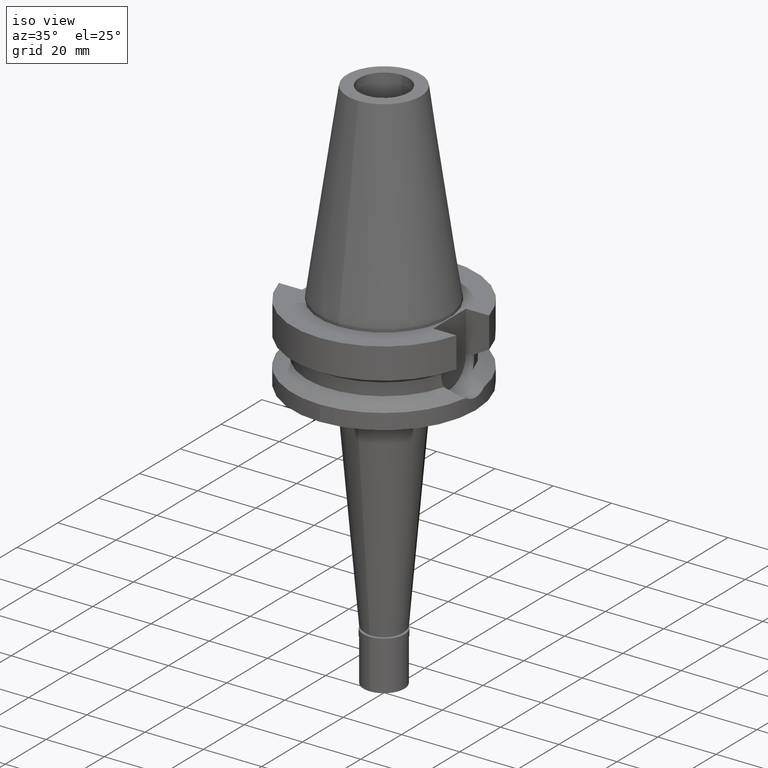
[diagram: clean part render]
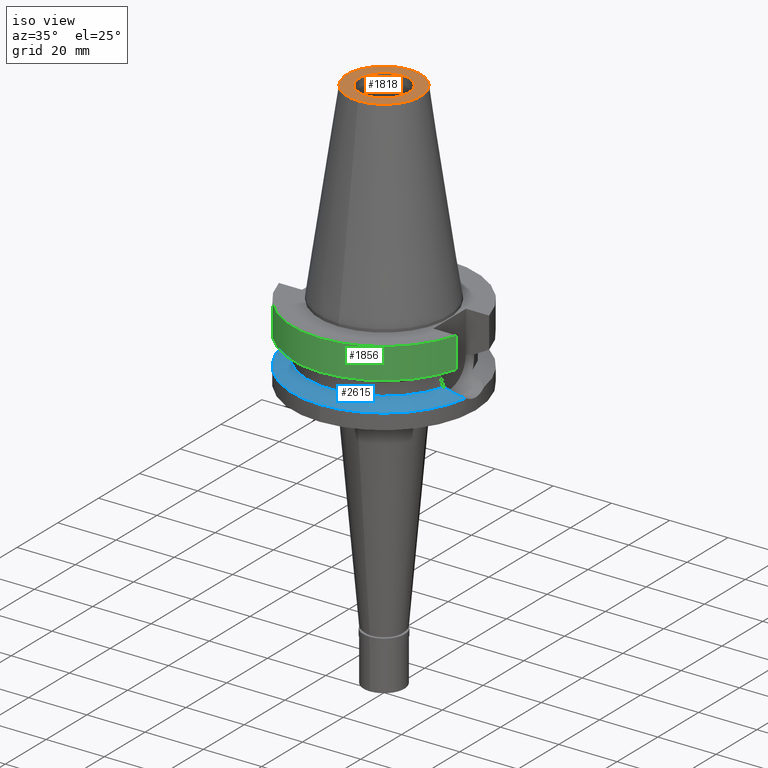
[diagram: same view with three faces highlighted in distinct colors, each labeled with its STEP entity id]
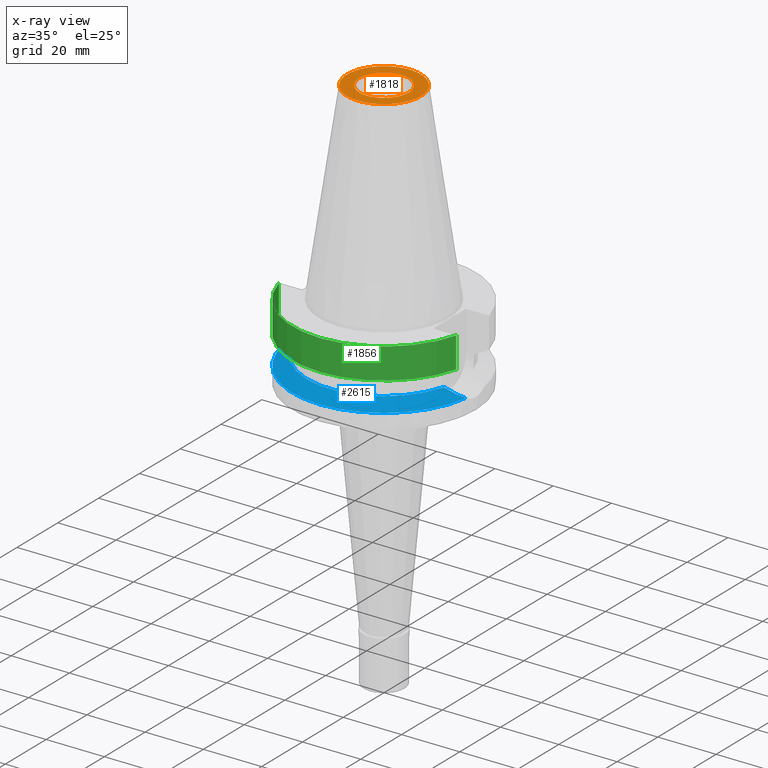
[diagram: x-ray of the same camera — body ghosted, the three highlighted faces saturated]
A machine part, iso view with three faces highlighted in distinct colors.
The next image is the same camera in x-ray (body ghosted, the three faces saturated) — at least one of them is partly hidden behind the body in this view.
Their STEP definitions:

[orange] entity #1818 — the highlighted planar face has unit normal (0, 0, -1).
#60 = ORIENTED_EDGE ( 'NONE', *, *, #2128, .F. ) ;
#69 = EDGE_LOOP ( 'NONE', ( #60, #2188 ) ) ;
#181 = AXIS2_PLACEMENT_3D ( 'NONE', #350, #2866, #412 ) ;
#193 = CARTESIAN_POINT ( 'NONE',  ( 0.0000000000000000000, 12.68766899429999917, 65.40000000000000568 ) ) ;
#198 = VERTEX_POINT ( 'NONE', #2687 ) ;
#265 = CARTESIAN_POINT ( 'NONE',  ( 0.0000000000000000000, -12.68766899429999917, 65.40000000000000568 ) ) ;
#320 = EDGE_CURVE ( 'NONE', #2205, #198, #1810, .T. ) ;
#345 = CIRCLE ( 'NONE', #740, 8.500000000000000000 ) ;
#350 = CARTESIAN_POINT ( 'NONE',  ( 0.0000000000000000000, 1.625106302469000024E-14, 65.40000000000000568 ) ) ;
#412 = DIRECTION ( 'NONE',  ( 0.0000000000000000000, 1.000000000000000000, 0.0000000000000000000 ) ) ;
#499 = AXIS2_PLACEMENT_3D ( 'NONE', #2632, #816, #565 ) ;
#518 = VERTEX_POINT ( 'NONE', #193 ) ;
#565 = DIRECTION ( 'NONE',  ( 0.0000000000000000000, -1.000000000000000000, 0.0000000000000000000 ) ) ;
#740 = AXIS2_PLACEMENT_3D ( 'NONE', #1622, #929, #2546 ) ;
#791 = CARTESIAN_POINT ( 'NONE',  ( 0.0000000000000000000, 2.025565805790000122E-14, 65.40000000000000568 ) ) ;
#816 = DIRECTION ( 'NONE',  ( 0.0000000000000000000, 0.0000000000000000000, 1.000000000000000000 ) ) ;
#929 = DIRECTION ( 'NONE',  ( 0.0000000000000000000, 0.0000000000000000000, 1.000000000000000000 ) ) ;
#1137 = CIRCLE ( 'NONE', #181, 12.68766899429999917 ) ;
#1172 = CIRCLE ( 'NONE', #1941, 12.68766899429999917 ) ;
#1173 = EDGE_CURVE ( 'NONE', #518, #2614, #1137, .T. ) ;
#1278 = DIRECTION ( 'NONE',  ( 0.0000000000000000000, -1.000000000000000000, 0.0000000000000000000 ) ) ;
#1314 = AXIS2_PLACEMENT_3D ( 'NONE', #791, #1723, #2407 ) ;
#1467 = ORIENTED_EDGE ( 'NONE', *, *, #1173, .F. ) ;
#1492 = DIRECTION ( 'NONE',  ( 0.0000000000000000000, 0.0000000000000000000, -1.000000000000000000 ) ) ;
#1622 = CARTESIAN_POINT ( 'NONE',  ( 0.0000000000000000000, 2.136641270472000125E-14, 65.40000000000000568 ) ) ;
#1723 = DIRECTION ( 'NONE',  ( 0.0000000000000000000, 0.0000000000000000000, -1.000000000000000000 ) ) ;
#1810 = CIRCLE ( 'NONE', #499, 8.500000000000000000 ) ;
#1818 = ADVANCED_FACE ( 'NONE', ( #2832, #2362 ), #2195, .F. ) ;
#1903 = ORIENTED_EDGE ( 'NONE', *, *, #2443, .F. ) ;
#1941 = AXIS2_PLACEMENT_3D ( 'NONE', #2645, #1492, #1278 ) ;
#2120 = EDGE_LOOP ( 'NONE', ( #1467, #1903 ) ) ;
#2128 = EDGE_CURVE ( 'NONE', #198, #2205, #345, .T. ) ;
#2188 = ORIENTED_EDGE ( 'NONE', *, *, #320, .F. ) ;
#2195 = PLANE ( 'NONE',  #1314 ) ;
#2205 = VERTEX_POINT ( 'NONE', #2533 ) ;
#2362 = FACE_BOUND ( 'NONE', #69, .T. ) ;
#2407 = DIRECTION ( 'NONE',  ( 0.0000000000000000000, -1.000000000000000000, 0.0000000000000000000 ) ) ;
#2443 = EDGE_CURVE ( 'NONE', #2614, #518, #1172, .T. ) ;
#2533 = CARTESIAN_POINT ( 'NONE',  ( 0.0000000000000000000, -8.500000000000000000, 65.40000000000000568 ) ) ;
#2546 = DIRECTION ( 'NONE',  ( 0.0000000000000000000, 1.000000000000000000, 0.0000000000000000000 ) ) ;
#2614 = VERTEX_POINT ( 'NONE', #265 ) ;
#2632 = CARTESIAN_POINT ( 'NONE',  ( 0.0000000000000000000, 2.136641270472000125E-14, 65.40000000000000568 ) ) ;
#2645 = CARTESIAN_POINT ( 'NONE',  ( 0.0000000000000000000, 1.625106302469000024E-14, 65.40000000000000568 ) ) ;
#2687 = CARTESIAN_POINT ( 'NONE',  ( 0.0000000000000000000, 8.500000000000000000, 65.40000000000000568 ) ) ;
#2832 = FACE_OUTER_BOUND ( 'NONE', #2120, .T. ) ;
#2866 = DIRECTION ( 'NONE',  ( 0.0000000000000000000, 0.0000000000000000000, -1.000000000000000000 ) ) ;

[blue] entity #2615 — the highlighted conical surface has half-angle 60 deg.
#5 = CARTESIAN_POINT ( 'NONE',  ( 28.71625662029167358, -5.944529186446243507, -20.37876024790167051 ) ) ;
#13 = DIRECTION ( 'NONE',  ( 0.9898094849552905306, -0.1423979757318985240, 0.0000000000000000000 ) ) ;
#31 = CARTESIAN_POINT ( 'NONE',  ( 31.17899877608999759, -4.485536235554000051, -21.63449434733000132 ) ) ;
#49 = CARTESIAN_POINT ( 'NONE',  ( 27.58513478300328359, -6.426691013998484081, -19.80079982718450893 ) ) ;
#134 = CARTESIAN_POINT ( 'NONE',  ( 0.0000000000000000000, -31.50000000000000000, -21.63449434733000132 ) ) ;
#143 = VERTEX_POINT ( 'NONE', #1935 ) ;
#195 = VERTEX_POINT ( 'NONE', #134 ) ;
#258 = CARTESIAN_POINT ( 'NONE',  ( 26.76043140642345719, -6.731307559101525229, -19.37859616086990044 ) ) ;
#316 = AXIS2_PLACEMENT_3D ( 'NONE', #1661, #2154, #2828 ) ;
#337 = CARTESIAN_POINT ( 'NONE',  ( -29.16522048485027696, -5.726412198028404177, -20.60847650803066955 ) ) ;
#416 = CIRCLE ( 'NONE', #316, 31.50000000000000000 ) ;
#460 = CARTESIAN_POINT ( 'NONE',  ( 0.0000000000000000000, 0.0000000000000000000, -21.63449434733000132 ) ) ;
#461 = EDGE_LOOP ( 'NONE', ( #2079, #561, #2294, #1728, #2637 ) ) ;
#463 = CARTESIAN_POINT ( 'NONE',  ( 31.17899877608999759, -4.485536235554000051, -21.63449434733000132 ) ) ;
#473 = DIRECTION ( 'NONE',  ( 0.0000000000000000000, 0.0000000000000000000, -1.000000000000000000 ) ) ;
#498 = CARTESIAN_POINT ( 'NONE',  ( 0.0000000000000000000, 0.0000000000000000000, -20.19111867435999841 ) ) ;
#561 = ORIENTED_EDGE ( 'NONE', *, *, #1424, .F. ) ;
#567 = CARTESIAN_POINT ( 'NONE',  ( -29.75797196429011038, -5.412893641033083014, -20.91090832281706824 ) ) ;
#612 = DIRECTION ( 'NONE',  ( -0.9634623335000935818, -0.2678438573619981722, 0.0000000000000000000 ) ) ;
#813 = CARTESIAN_POINT ( 'NONE',  ( -25.53175183775000079, -7.097862220092999941, -18.74774300138999905 ) ) ;
#833 = CARTESIAN_POINT ( 'NONE',  ( -28.64528884224851524, -5.976591523367489778, -20.34293260147575566 ) ) ;
#911 = B_SPLINE_CURVE_WITH_KNOTS ( 'NONE', 3,
 ( #1032, #2160, #2447, #567, #1506, #337, #1742, #1523, #833, #1078, #1937, #1477, #2403, #1972, #2883, #2851 ),
 .UNSPECIFIED., .F., .F.,
 ( 4, 2, 2, 1, 1, 1, 1, 2, 2, 4 ),
 ( 0.0000000000000000000, 0.2500000000000207612, 0.3750000000000305311, 0.4375000000000351941, 0.4687500000000375255, 0.4843750000000385247, 0.4921875000000380806, 0.4960937500000373035, 0.5000000000000365263, 1.000000000000000000 ),
 .UNSPECIFIED. ) ;
#941 = EDGE_CURVE ( 'NONE', #195, #143, #416, .T. ) ;
#953 = DIRECTION ( 'NONE',  ( 0.0000000000000000000, -1.000000000000000000, 0.0000000000000000000 ) ) ;
#1032 = CARTESIAN_POINT ( 'NONE',  ( -31.17899877608999759, -4.485536235554000051, -21.63449434733000132 ) ) ;
#1078 = CARTESIAN_POINT ( 'NONE',  ( -28.58844394561251789, -6.002617293046106361, -20.31388881503360366 ) ) ;
#1126 = CONICAL_SURFACE ( 'NONE', #2037, 29.00000000000000000, 1.047197551196400456 ) ;
#1133 = EDGE_CURVE ( 'NONE', #1182, #2406, #2627, .T. ) ;
#1182 = VERTEX_POINT ( 'NONE', #813 ) ;
#1198 = B_SPLINE_CURVE_WITH_KNOTS ( 'NONE', 3,
 ( #2773, #2312, #258, #49, #2569, #1666, #1841, #2085, #5, #1603, #2281, #31 ),
 .UNSPECIFIED., .F., .F.,
 ( 4, 2, 2, 2, 2, 4 ),
 ( 0.0000000000000000000, 0.2500000000000017764, 0.3750000000000027200, 0.4375000000000026090, 0.5000000000000024425, 1.000000000000000000 ),
 .UNSPECIFIED. ) ;
#1221 = FACE_OUTER_BOUND ( 'NONE', #461, .T. ) ;
#1424 = EDGE_CURVE ( 'NONE', #1494, #195, #2046, .T. ) ;
#1477 = CARTESIAN_POINT ( 'NONE',  ( -28.54766965419546310, -6.021153858531123504, -20.29305505584861891 ) ) ;
#1494 = VERTEX_POINT ( 'NONE', #463 ) ;
#1506 = CARTESIAN_POINT ( 'NONE',  ( -29.52704406209947763, -5.539928367361227401, -20.79314178324986528 ) ) ;
#1510 = EDGE_CURVE ( 'NONE', #2406, #1494, #1198, .T. ) ;
#1523 = CARTESIAN_POINT ( 'NONE',  ( -28.75813471311628788, -5.924279666573429637, -20.40058410530905064 ) ) ;
#1603 = CARTESIAN_POINT ( 'NONE',  ( 29.74503513429092294, -5.455095108263539494, -20.90414161178179953 ) ) ;
#1661 = CARTESIAN_POINT ( 'NONE',  ( 0.0000000000000000000, 0.0000000000000000000, -21.63449434733000132 ) ) ;
#1665 = AXIS2_PLACEMENT_3D ( 'NONE', #460, #2308, #13 ) ;
#1666 = CARTESIAN_POINT ( 'NONE',  ( 28.22936257463082299, -6.162480277355186331, -20.13009331251787160 ) ) ;
#1728 = ORIENTED_EDGE ( 'NONE', *, *, #1133, .F. ) ;
#1742 = CARTESIAN_POINT ( 'NONE',  ( -28.98045076523484909, -5.818636508338915547, -20.51414099342685304 ) ) ;
#1786 = DIRECTION ( 'NONE',  ( 0.0000000000000000000, 0.0000000000000000000, 1.000000000000000000 ) ) ;
#1841 = CARTESIAN_POINT ( 'NONE',  ( 28.35336781796007699, -6.108655093007190118, -20.19343586532653845 ) ) ;
#1935 = CARTESIAN_POINT ( 'NONE',  ( -31.17899877608999759, -4.485536235554000051, -21.63449434733000132 ) ) ;
#1937 = CARTESIAN_POINT ( 'NONE',  ( -28.56399142679663328, -6.013743009857608790, -20.30139478354219307 ) ) ;
#1972 = CARTESIAN_POINT ( 'NONE',  ( -27.66923828755344417, -6.418353130451510680, -19.84420298890607626 ) ) ;
#1983 = CARTESIAN_POINT ( 'NONE',  ( 25.53175183775000079, -7.097862220092999941, -18.74774300138999905 ) ) ;
#2037 = AXIS2_PLACEMENT_3D ( 'NONE', #498, #473, #953 ) ;
#2046 = CIRCLE ( 'NONE', #1665, 31.50000000000001421 ) ;
#2079 = ORIENTED_EDGE ( 'NONE', *, *, #941, .F. ) ;
#2085 = CARTESIAN_POINT ( 'NONE',  ( 28.59600017684493878, -6.000067116066695405, -20.31735328833591936 ) ) ;
#2140 = AXIS2_PLACEMENT_3D ( 'NONE', #2429, #1786, #612 ) ;
#2154 = DIRECTION ( 'NONE',  ( 0.0000000000000000000, 0.0000000000000000000, -1.000000000000000000 ) ) ;
#2160 = CARTESIAN_POINT ( 'NONE',  ( -30.82002113146375777, -4.757881319088356875, -21.45174099647502786 ) ) ;
#2281 = CARTESIAN_POINT ( 'NONE',  ( 30.52784627829780106, -4.979545219290019809, -21.30299654329647296 ) ) ;
#2294 = ORIENTED_EDGE ( 'NONE', *, *, #1510, .F. ) ;
#2302 = EDGE_CURVE ( 'NONE', #143, #1182, #911, .T. ) ;
#2308 = DIRECTION ( 'NONE',  ( 0.0000000000000000000, 0.0000000000000000000, -1.000000000000000000 ) ) ;
#2312 = CARTESIAN_POINT ( 'NONE',  ( 26.16760413318123213, -6.923077319846836275, -19.07441048247832072 ) ) ;
#2403 = CARTESIAN_POINT ( 'NONE',  ( -28.53805273724244529, -6.025509951105989082, -20.28814115081775427 ) ) ;
#2406 = VERTEX_POINT ( 'NONE', #1983 ) ;
#2429 = CARTESIAN_POINT ( 'NONE',  ( 0.0000000000000000000, 0.0000000000000000000, -18.74774300138999905 ) ) ;
#2447 = CARTESIAN_POINT ( 'NONE',  ( -30.41989222293550199, -5.025167687431352448, -21.24821975814288777 ) ) ;
#2569 = CARTESIAN_POINT ( 'NONE',  ( 27.84927965298266628, -6.322316583498477804, -19.93587330352029596 ) ) ;
#2615 = ADVANCED_FACE ( 'NONE', ( #1221 ), #1126, .T. ) ;
#2627 = CIRCLE ( 'NONE', #2140, 26.49999999999998224 ) ;
#2637 = ORIENTED_EDGE ( 'NONE', *, *, #2302, .F. ) ;
#2773 = CARTESIAN_POINT ( 'NONE',  ( 25.53175183775000079, -7.097862220092999941, -18.74774300138999905 ) ) ;
#2828 = DIRECTION ( 'NONE',  ( 0.0000000000000000000, -1.000000000000000000, 0.0000000000000000000 ) ) ;
#2851 = CARTESIAN_POINT ( 'NONE',  ( -25.53175183775000079, -7.097862220092999941, -18.74774300138999905 ) ) ;
#2883 = CARTESIAN_POINT ( 'NONE',  ( -26.66938298630064352, -6.785146911453962204, -19.33219807747231300 ) ) ;

[green] entity #1856 — the highlighted cylindrical surface (partial cylindrical patch) has radius 31.5 mm, axis along (0, 0, -1).
#108 = AXIS2_PLACEMENT_3D ( 'NONE', #572, #1469, #2393 ) ;
#175 = EDGE_CURVE ( 'NONE', #1245, #2963, #1707, .T. ) ;
#176 = LINE ( 'NONE', #1107, #1704 ) ;
#334 = CARTESIAN_POINT ( 'NONE',  ( 0.0000000000000000000, 2.136641270472000125E-14, -1.000000000000000000 ) ) ;
#543 = CIRCLE ( 'NONE', #649, 31.50000000000000000 ) ;
#572 = CARTESIAN_POINT ( 'NONE',  ( 0.0000000000000000000, 2.136641270472000125E-14, 74.46999999999999886 ) ) ;
#576 = DIRECTION ( 'NONE',  ( 0.0000000000000000000, -1.000000000000000000, 0.0000000000000000000 ) ) ;
#636 = DIRECTION ( 'NONE',  ( 1.806225600065990691E-08, -6.833170949808963405E-08, 0.9999999999999974465 ) ) ;
#649 = AXIS2_PLACEMENT_3D ( 'NONE', #2233, #1100, #2720 ) ;
#667 = ORIENTED_EDGE ( 'NONE', *, *, #2584, .T. ) ;
#765 = CYLINDRICAL_SURFACE ( 'NONE', #108, 31.50000000000000000 ) ;
#901 = DIRECTION ( 'NONE',  ( -1.036791478987017605E-07, -3.922289229453068409E-07, -0.9999999999999177325 ) ) ;
#959 = EDGE_LOOP ( 'NONE', ( #2543, #667, #1328, #1050 ) ) ;
#1050 = ORIENTED_EDGE ( 'NONE', *, *, #175, .T. ) ;
#1068 = VECTOR ( 'NONE', #901, 1000.000000000000114 ) ;
#1100 = DIRECTION ( 'NONE',  ( 0.0000000000000000000, 0.0000000000000000000, 1.000000000000000000 ) ) ;
#1107 = CARTESIAN_POINT ( 'NONE',  ( -30.45402291362000113, -8.049999278039999595, -11.56551215521000131 ) ) ;
#1131 = AXIS2_PLACEMENT_3D ( 'NONE', #334, #2214, #576 ) ;
#1245 = VERTEX_POINT ( 'NONE', #2448 ) ;
#1328 = ORIENTED_EDGE ( 'NONE', *, *, #1942, .F. ) ;
#1469 = DIRECTION ( 'NONE',  ( 0.0000000000000000000, 0.0000000000000000000, -1.000000000000000000 ) ) ;
#1704 = VECTOR ( 'NONE', #636, 1000.000000000000114 ) ;
#1706 = CARTESIAN_POINT ( 'NONE',  ( -30.45402291362000113, -8.049999278039999595, -11.56551215521000131 ) ) ;
#1707 = CIRCLE ( 'NONE', #1131, 31.50000000000000000 ) ;
#1856 = ADVANCED_FACE ( 'NONE', ( #2175 ), #765, .T. ) ;
#1942 = EDGE_CURVE ( 'NONE', #1245, #1961, #2031, .T. ) ;
#1961 = VERTEX_POINT ( 'NONE', #2711 ) ;
#2031 = LINE ( 'NONE', #2453, #1068 ) ;
#2175 = FACE_OUTER_BOUND ( 'NONE', #959, .T. ) ;
#2214 = DIRECTION ( 'NONE',  ( 0.0000000000000000000, 0.0000000000000000000, -1.000000000000000000 ) ) ;
#2233 = CARTESIAN_POINT ( 'NONE',  ( 0.0000000000000000000, 1.065333950388000029E-14, -11.56550565266999975 ) ) ;
#2393 = DIRECTION ( 'NONE',  ( 0.0000000000000000000, -1.000000000000000000, 0.0000000000000000000 ) ) ;
#2448 = CARTESIAN_POINT ( 'NONE',  ( 30.45402272279000044, -8.050000000000000711, -1.000000000000000000 ) ) ;
#2453 = CARTESIAN_POINT ( 'NONE',  ( 30.45402272279000044, -8.050000000000000711, -1.000000000000000000 ) ) ;
#2543 = ORIENTED_EDGE ( 'NONE', *, *, #2962, .F. ) ;
#2584 = EDGE_CURVE ( 'NONE', #2882, #1961, #543, .T. ) ;
#2685 = CARTESIAN_POINT ( 'NONE',  ( -30.45402272279000044, -8.050000000000000711, -1.000000000000000000 ) ) ;
#2711 = CARTESIAN_POINT ( 'NONE',  ( 30.45402272279000044, -8.049999999999000622, -11.56550565266999975 ) ) ;
#2720 = DIRECTION ( 'NONE',  ( 0.0000000000000000000, -1.000000000000000000, 0.0000000000000000000 ) ) ;
#2882 = VERTEX_POINT ( 'NONE', #1706 ) ;
#2962 = EDGE_CURVE ( 'NONE', #2882, #2963, #176, .T. ) ;
#2963 = VERTEX_POINT ( 'NONE', #2685 ) ;